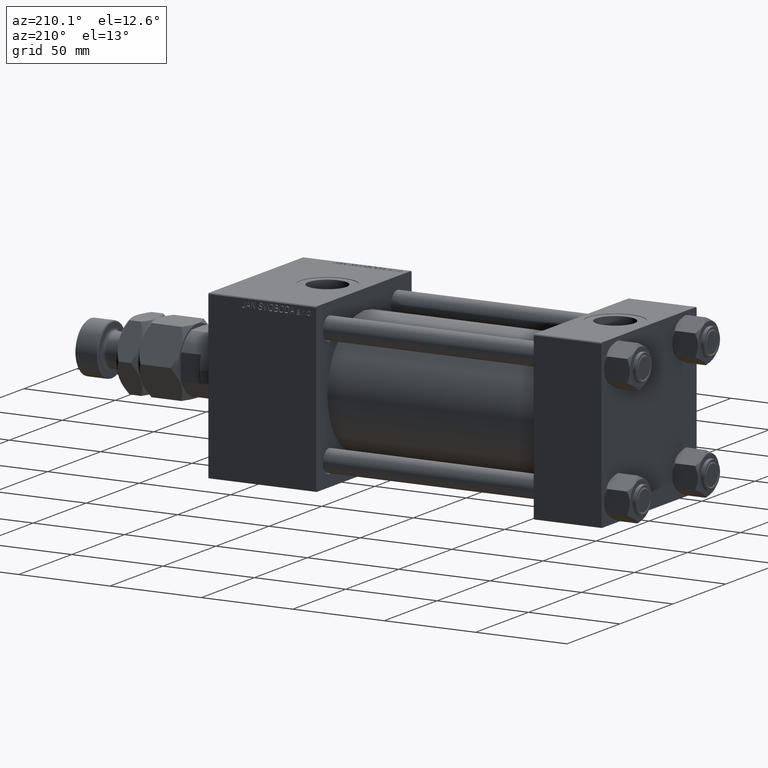
[diagram: clean part render]
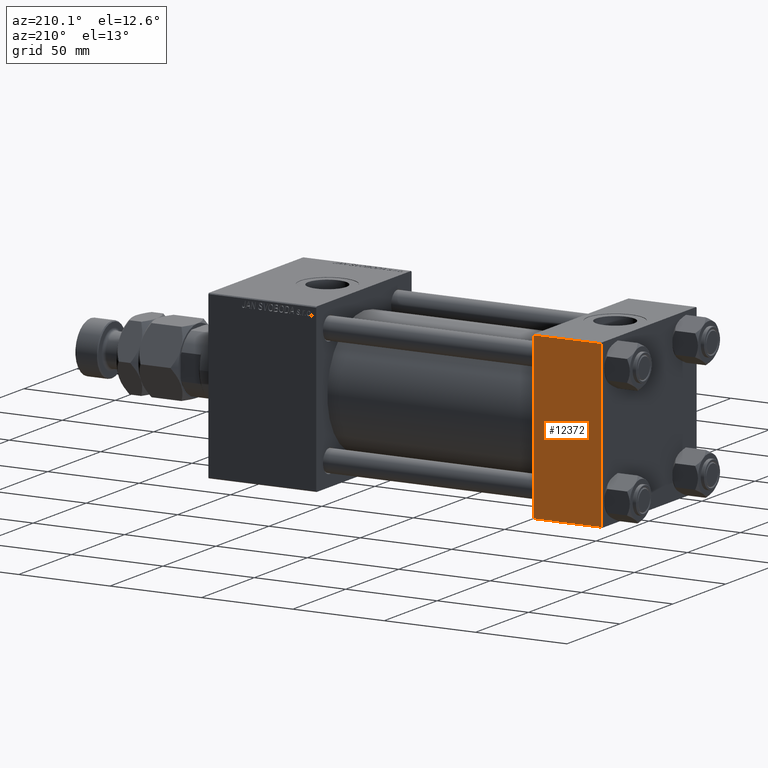
[diagram: same view with one face highlighted and labeled with its STEP entity id]
A machine part, auxiliary view. The second image highlights one B-rep face of the part: STEP entity #12372.
In plain terms, the highlighted planar face has unit normal (0, 1, 0).
Its self-contained STEP definition (entity closure, byte-faithful):
#4955 = EDGE_LOOP ( 'NONE', ( #15609, #26157, #42688, #27783 ) ) ;
#6698 = EDGE_CURVE ( 'NONE', #7712, #27084, #29645, .T. ) ;
#7252 = EDGE_CURVE ( 'NONE', #26087, #18814, #28466, .T. ) ;
#7712 = VERTEX_POINT ( 'NONE', #31456 ) ;
#8629 = CARTESIAN_POINT ( 'NONE',  ( 0.000000000000000000, 44.99999999999998579, 45.00000000000001421 ) ) ;
#9798 = VECTOR ( 'NONE', #16137, 1000.000000000000000 ) ;
#11145 = PLANE ( 'NONE',  #21021 ) ;
#12372 = ADVANCED_FACE ( 'NONE', ( #47129 ), #11145, .T. ) ;
#12626 = VECTOR ( 'NONE', #36743, 1000.000000000000000 ) ;
#12972 = CARTESIAN_POINT ( 'NONE',  ( 37.00000000000000000, 44.99999999999998579, 45.00000000000001421 ) ) ;
#15609 = ORIENTED_EDGE ( 'NONE', *, *, #7252, .T. ) ;
#16137 = DIRECTION ( 'NONE',  ( -1.000000000000000000, 0.000000000000000000, 0.000000000000000000 ) ) ;
#16538 = CARTESIAN_POINT ( 'NONE',  ( 37.00000000000000000, 44.99999999999998579, 44.50000000000001421 ) ) ;
#18814 = VERTEX_POINT ( 'NONE', #41581 ) ;
#21021 = AXIS2_PLACEMENT_3D ( 'NONE', #24773, #25034, #28705 ) ;
#24407 = VECTOR ( 'NONE', #28207, 1000.000000000000000 ) ;
#24773 = CARTESIAN_POINT ( 'NONE',  ( 37.00000000000000000, 44.99999999999998579, 45.00000000000001421 ) ) ;
#25034 = DIRECTION ( 'NONE',  ( -0.000000000000000000, 1.000000000000000000, 0.000000000000000000 ) ) ;
#26087 = VERTEX_POINT ( 'NONE', #27141 ) ;
#26157 = ORIENTED_EDGE ( 'NONE', *, *, #33185, .T. ) ;
#27084 = VERTEX_POINT ( 'NONE', #37456 ) ;
#27141 = CARTESIAN_POINT ( 'NONE',  ( 37.00000000000000000, 44.99999999999998579, 44.50000000000001421 ) ) ;
#27783 = ORIENTED_EDGE ( 'NONE', *, *, #34581, .T. ) ;
#28207 = DIRECTION ( 'NONE',  ( 0.000000000000000000, 0.000000000000000000, -1.000000000000000000 ) ) ;
#28466 = LINE ( 'NONE', #12972, #24407 ) ;
#28705 = DIRECTION ( 'NONE',  ( 0.000000000000000000, -0.000000000000000000, 1.000000000000000000 ) ) ;
#29645 = LINE ( 'NONE', #8629, #12626 ) ;
#31456 = CARTESIAN_POINT ( 'NONE',  ( 0.000000000000000000, 44.99999999999998579, 44.50000000000001421 ) ) ;
#33185 = EDGE_CURVE ( 'NONE', #18814, #27084, #44764, .T. ) ;
#34581 = EDGE_CURVE ( 'NONE', #7712, #26087, #35724, .T. ) ;
#35724 = LINE ( 'NONE', #16538, #45078 ) ;
#36743 = DIRECTION ( 'NONE',  ( 0.000000000000000000, 0.000000000000000000, -1.000000000000000000 ) ) ;
#37456 = CARTESIAN_POINT ( 'NONE',  ( 0.000000000000000000, 44.99999999999998579, -44.49999999999995737 ) ) ;
#41581 = CARTESIAN_POINT ( 'NONE',  ( 37.00000000000000000, 44.99999999999998579, -44.49999999999995737 ) ) ;
#42688 = ORIENTED_EDGE ( 'NONE', *, *, #6698, .F. ) ;
#44764 = LINE ( 'NONE', #51857, #9798 ) ;
#45078 = VECTOR ( 'NONE', #51737, 1000.000000000000000 ) ;
#47129 = FACE_OUTER_BOUND ( 'NONE', #4955, .T. ) ;
#51737 = DIRECTION ( 'NONE',  ( 1.000000000000000000, 0.000000000000000000, 0.000000000000000000 ) ) ;
#51857 = CARTESIAN_POINT ( 'NONE',  ( 37.00000000000000000, 44.99999999999998579, -44.49999999999998579 ) ) ;